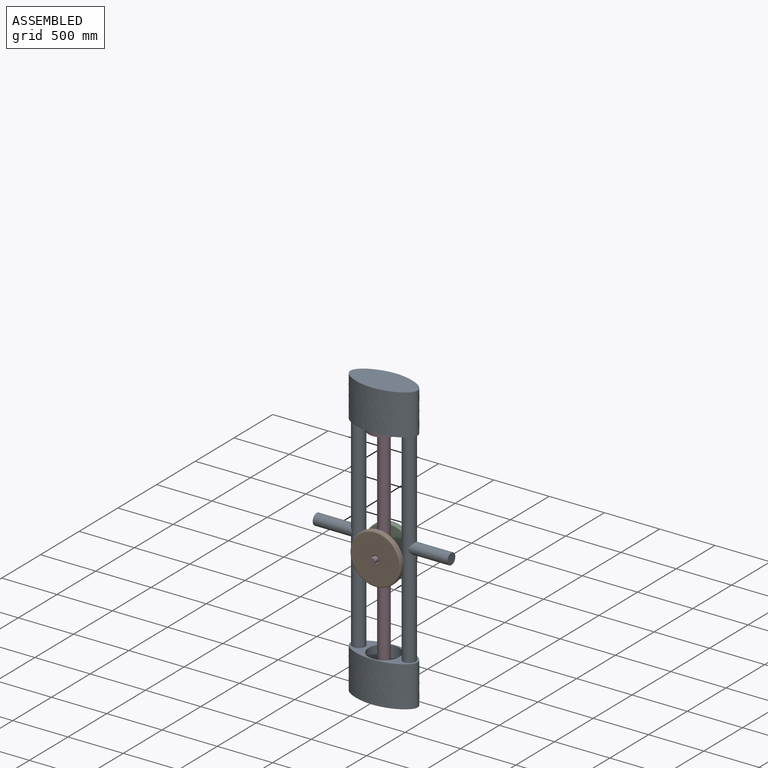
[diagram: assembled view]
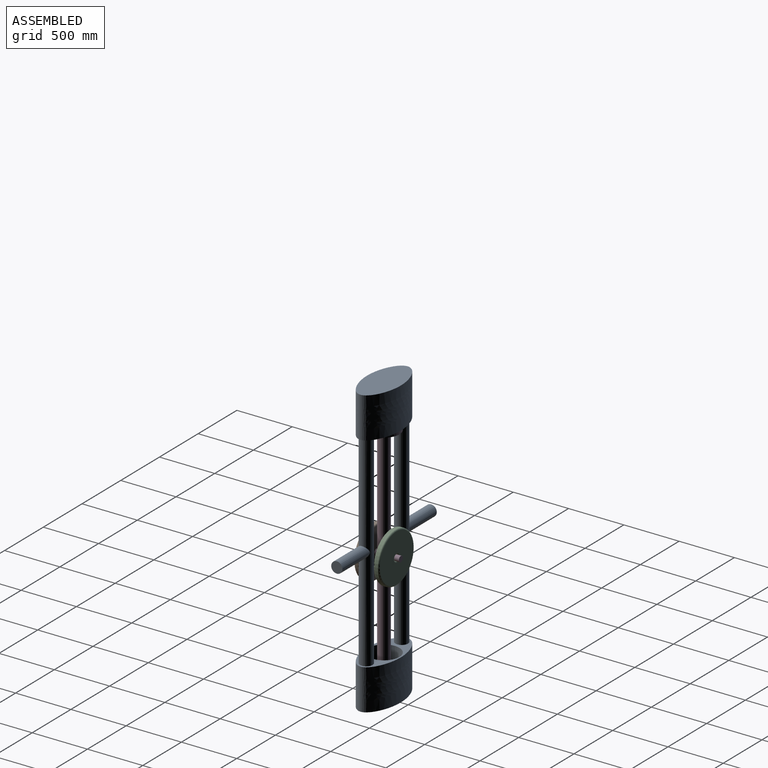
[diagram: assembled view, second angle]
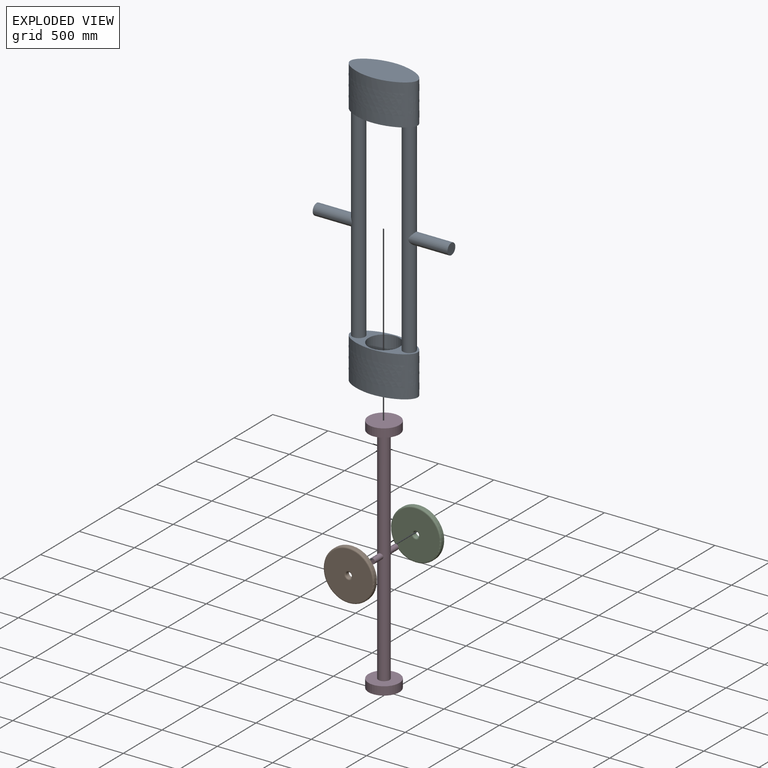
[diagram: exploded view]
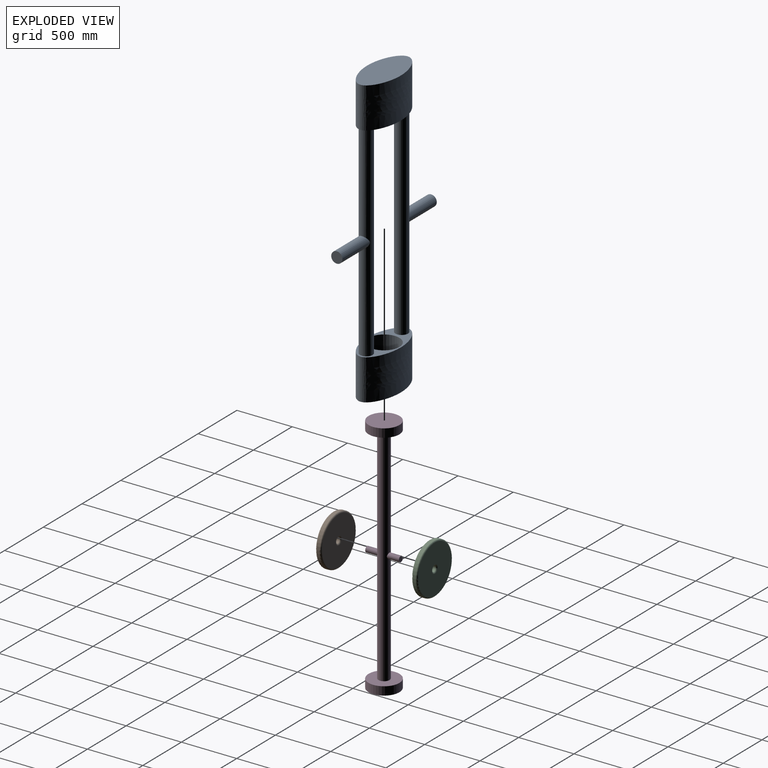
[diagram: exploded view, second angle]
ASSEMBLY  parts=4 mates=3
PART A: 30 faces, bbox 1219.2x336.7x2590.8 mm
  f0: cylinder r=57.15mm len=1854.2mm, axis (0,0,1), area 656465mm2, adj f19,f20,f29
  f1: cylinder r=139.7mm len=292.1mm, axis (0,0,1), area 247957.5mm2, adj f2,f5,f14,f15,f19
  f2: torus R=101.6mm, axis (0,1,0), area 49662.3mm2, adj f1,f3,f4,f9,f14
  f3: torus R=101.6mm, axis (0,1,0), area 0.1mm2, adj f2,f4,f15
  f4: cylinder r=50.8mm len=254mm, axis (-1,0,0), area 40536.6mm2, adj f2,f3,f5,f6,f14,f15
  f5: torus R=101.6mm, axis (0,1,0), area 49662.4mm2, adj f1,f4,f6,f10,f15
  f6: torus R=101.6mm, axis (0,1,0), area 0.1mm2, adj f4,f5,f14
  f7: torus R=101.6mm, axis (0,1,0), area 0.1mm2, adj f8,f13,f18
  f8: torus R=101.6mm, axis (0,1,0), area 49661.6mm2, adj f7,f9,f13,f16,f17
  f9: cylinder r=50.8mm len=2235.2mm, axis (0,0,1), area 713444.1mm2, adj f2,f8
  f10: cylinder r=50.8mm len=2235.2mm, axis (0,0,-1), area 713444.1mm2, adj f5,f11
  f11: torus R=101.6mm, axis (0,1,0), area 49662.2mm2, adj f10,f12,f13,f16,f18
  f12: torus R=101.6mm, axis (0,1,0), area 0.1mm2, adj f11,f13,f17
  f13: cylinder r=50.8mm len=254mm, axis (1,0,0), area 40536.6mm2, adj f7,f8,f11,f12,f17,f18
  f14: plane 260.3x88.92mm, normal (0,0,1), area 16781.6mm2, adj f1,f2,f4,f6
  f15: plane 260.3x88.92mm, normal (0,0,1), area 16781.6mm2, adj f1,f3,f4,f5
  f16: cylinder r=139.7mm len=292.1mm, axis (0,0,1), area 247963.1mm2, adj f8,f11,f17,f18,f20
  f17: plane 260.3x88.92mm, normal (0,0,-1), area 16781.6mm2, adj f8,f12,f13,f16
  f18: plane 260.3x88.92mm, normal (0,0,-1), area 16781.6mm2, adj f7,f11,f13,f16
  f19: plane 625.55x336.71mm, normal (0,0,1), area 59863.2mm2, adj f0,f1,f21,f24
  f20: plane 625.55x336.71mm, normal (0,0,-1), area 59863.2mm2, adj f0,f16,f21,f23
  f21: cylinder r=57.15mm len=1854.2mm, axis (0,0,1), area 656463.2mm2, adj f19,f20,f27
  f22: plane 625.55x336.71mm, normal (0,0,1), area 141696.5mm2, adj f23
  f23: extruded ~609.6x368.3mm, area 537934.1mm2, adj f20,f22
  f24: extruded ~609.6x368.3mm, area 537934.1mm2, adj f19,f25
  f25: plane 625.55x336.71mm, normal (0,0,-1), area 141696.5mm2, adj f24
  f26: plane 101.6x101.6mm, normal (1,0,0), area 8107.3mm2, adj f27
  f27: cylinder r=50.8mm len=354.82mm, axis (1,0,0), area 107847.8mm2, adj f21,f26
  f28: plane 101.6x101.6mm, normal (-1,0,0), area 8107.3mm2, adj f29
  f29: cylinder r=50.8mm len=354.82mm, axis (-1,0,0), area 107853.8mm2, adj f0,f28
PART B: 8 faces, bbox 494.9x50.8x494.9 mm
  f0: cylinder r=25.53mm len=51.05mm, axis (0,1,0), area 4073.9mm2, adj f4,f6
  f1: cylinder r=228.6mm len=457.2mm, axis (0,1,0), area 36482.9mm2, adj f5,f7
  f2: plane 431.8x431.8mm, normal (0,-1,0), area 141847.6mm2, adj f6,f7
  f3: plane 431.8x431.8mm, normal (0,1,0), area 141847.6mm2, adj f4,f5
  f4: torus R=38.23mm, axis (0,-1,0), area 3778.1mm2, adj f0,f3
  f5: torus R=215.9mm, axis (0,-1,0), area 28075.2mm2, adj f1,f3
  f6: torus R=38.23mm, axis (0,-1,0), area 3778.1mm2, adj f0,f2
  f7: torus R=215.9mm, axis (0,-1,0), area 28075.2mm2, adj f1,f2
PART C: same geometry as B
PART D: 11 faces, bbox 279.4x304.8x2184.4 mm
  f0: cylinder r=50.8mm len=2032mm, axis (0,0,-1), area 644391.5mm2, adj f3,f4,f8,f9
  f1: cylinder r=139.7mm len=279.4mm, axis (0,0,-1), area 66885.4mm2, adj f2,f3
  f2: plane 279.4x279.4mm, normal (0,0,1), area 61311.6mm2, adj f1
  f3: plane 279.4x279.4mm, normal (0,0,-1), area 53204.3mm2, adj f0,f1
  f4: plane 279.4x279.4mm, normal (0,0,1), area 53204.3mm2, adj f0,f6
  f5: plane 279.4x279.4mm, normal (0,0,-1), area 61311.6mm2, adj f6
  f6: cylinder r=139.7mm len=279.4mm, axis (0,0,-1), area 66885.4mm2, adj f4,f5
  f7: plane 50.8x50.8mm, normal (0,1,0), area 2026.8mm2, adj f8
  f8: cylinder r=25.4mm len=108.41mm, axis (0,1,0), area 16747.8mm2, adj f0,f7
  f9: cylinder r=25.4mm len=108.41mm, axis (0,1,0), area 16748.3mm2, adj f0,f10
  f10: plane 50.8x50.8mm, normal (0,-1,0), area 2026.8mm2, adj f9
PLACE A rot(axis=(0,0,1),0deg) t=(73.95,-166.15,-101.21)mm
PLACE B rot(axis=(0,0,-1),180deg) t=(73.95,-432.85,-224.37)mm
PLACE C t=(73.95,100.55,-224.37)mm
PLACE D t=(73.95,-166.15,-224.37)mm
MATE fastened B.f1 <-> D.f8  axis (0,-1,0) through (73.95,-280.45,-224.37)mm
MATE slider D.f1 <-> A.f1  axis (0,0,1) through (73.95,-166.15,-1240.37)mm
MATE fastened C.f1 <-> D.f8  axis (0,1,0) through (73.95,-51.85,-224.37)mm
